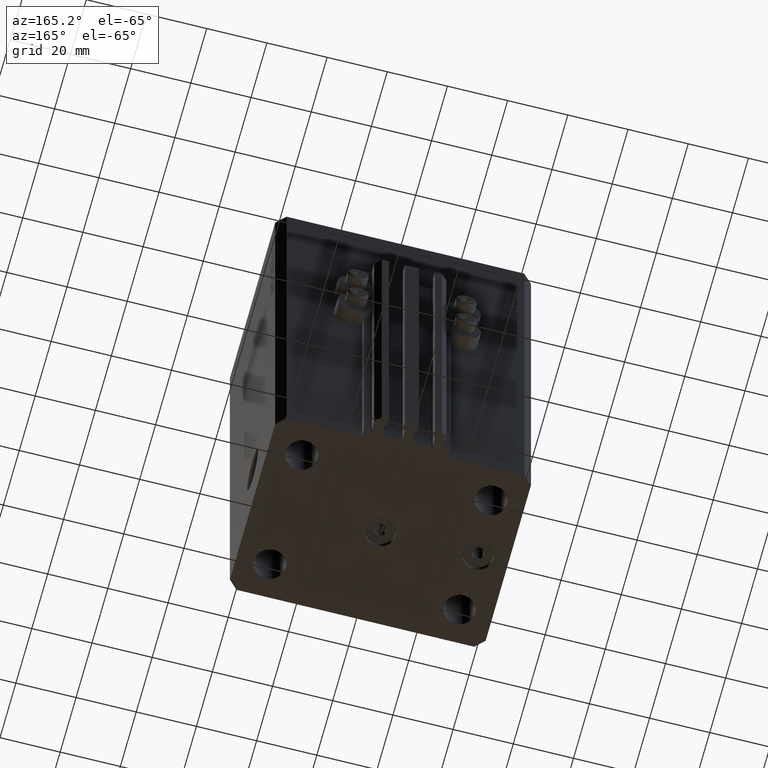
[diagram: clean part render]
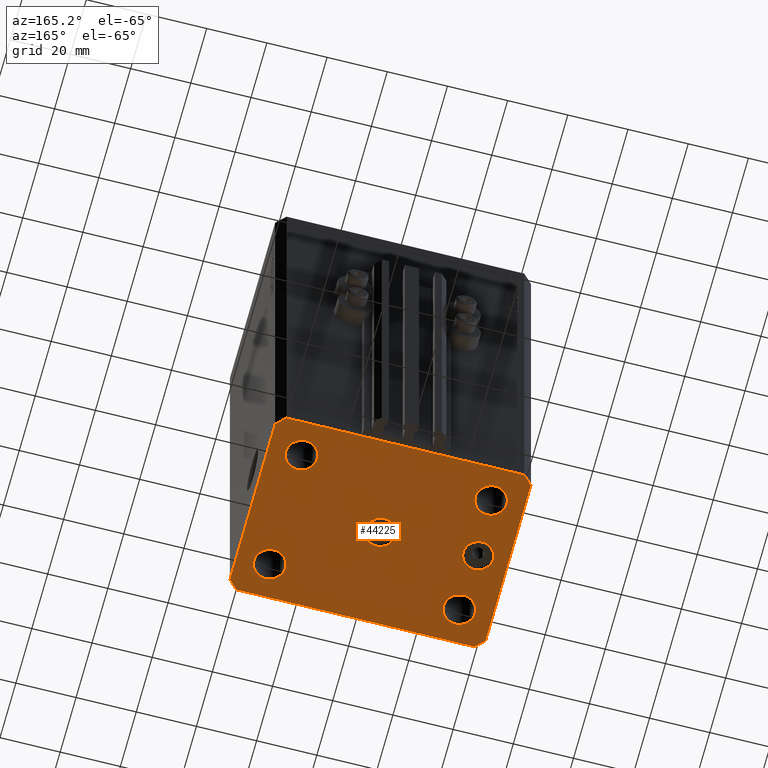
[diagram: same view with one face highlighted and labeled with its STEP entity id]
A machine part, auxiliary view. The second image highlights one B-rep face of the part: STEP entity #44225.
In plain terms, the highlighted planar face has unit normal (0, 0, 1).
Its self-contained STEP definition (entity closure, byte-faithful):
#68 = DIRECTION ( 'NONE',  ( -0.000000000000000000, -0.000000000000000000, -1.000000000000000000 ) ) ;
#307 = VERTEX_POINT ( 'NONE', #28433 ) ;
#404 = CARTESIAN_POINT ( 'NONE',  ( 0.000000000000000000, 0.000000000000000000, -153.0000000000000000 ) ) ;
#549 = VERTEX_POINT ( 'NONE', #17011 ) ;
#1037 = EDGE_CURVE ( 'NONE', #16553, #2522, #30980, .T. ) ;
#1038 = EDGE_CURVE ( 'NONE', #17531, #16792, #30493, .T. ) ;
#1124 = ORIENTED_EDGE ( 'NONE', *, *, #1037, .F. ) ;
#2073 = VERTEX_POINT ( 'NONE', #20455 ) ;
#2261 = DIRECTION ( 'NONE',  ( 0.000000000000000000, 0.000000000000000000, -1.000000000000000000 ) ) ;
#2512 = EDGE_CURVE ( 'NONE', #307, #549, #16695, .T. ) ;
#2522 = VERTEX_POINT ( 'NONE', #24583 ) ;
#2758 = VERTEX_POINT ( 'NONE', #4801 ) ;
#3050 = ORIENTED_EDGE ( 'NONE', *, *, #42569, .F. ) ;
#3149 = VECTOR ( 'NONE', #10317, 1000.000000000000000 ) ;
#3196 = AXIS2_PLACEMENT_3D ( 'NONE', #29631, #43973, #36779 ) ;
#3220 = ORIENTED_EDGE ( 'NONE', *, *, #2512, .F. ) ;
#3292 = ORIENTED_EDGE ( 'NONE', *, *, #41000, .F. ) ;
#3372 = EDGE_CURVE ( 'NONE', #43378, #18366, #3892, .T. ) ;
#3548 = ORIENTED_EDGE ( 'NONE', *, *, #40718, .F. ) ;
#3695 = AXIS2_PLACEMENT_3D ( 'NONE', #30355, #3900, #30610 ) ;
#3892 = LINE ( 'NONE', #11298, #4946 ) ;
#3900 = DIRECTION ( 'NONE',  ( -0.000000000000000000, -0.000000000000000000, -1.000000000000000000 ) ) ;
#4521 = DIRECTION ( 'NONE',  ( 1.000000000000000000, 0.000000000000000000, 0.000000000000000000 ) ) ;
#4600 = PLANE ( 'NONE',  #10551 ) ;
#4801 = CARTESIAN_POINT ( 'NONE',  ( -26.25000000000000000, 19.99999999999999645, -153.0000000000000000 ) ) ;
#4930 = CARTESIAN_POINT ( 'NONE',  ( 42.50000000000000711, -28.50000000000000355, -153.0000000000000000 ) ) ;
#4946 = VECTOR ( 'NONE', #18954, 1000.000000000000000 ) ;
#5120 = CARTESIAN_POINT ( 'NONE',  ( 39.50000000000000711, -31.50000000000000000, -153.0000000000000000 ) ) ;
#5556 = CARTESIAN_POINT ( 'NONE',  ( 0.000000000000000000, 0.000000000000000000, -153.0000000000000000 ) ) ;
#5746 = EDGE_CURVE ( 'NONE', #16792, #16553, #9129, .T. ) ;
#5913 = AXIS2_PLACEMENT_3D ( 'NONE', #10650, #18554, #14853 ) ;
#6056 = CARTESIAN_POINT ( 'NONE',  ( 39.50000000000056843, 31.50000000000000000, -153.0000000000000000 ) ) ;
#6152 = CIRCLE ( 'NONE', #45645, 5.249999999999997335 ) ;
#6597 = EDGE_CURVE ( 'NONE', #2522, #307, #20618, .T. ) ;
#7048 = ORIENTED_EDGE ( 'NONE', *, *, #28364, .F. ) ;
#7679 = CARTESIAN_POINT ( 'NONE',  ( -27.50000000000000355, 6.123233995736762338E-16, -153.0000000000000000 ) ) ;
#7988 = ORIENTED_EDGE ( 'NONE', *, *, #48752, .F. ) ;
#8320 = FACE_BOUND ( 'NONE', #28887, .T. ) ;
#8664 = CIRCLE ( 'NONE', #36273, 5.249999999999997335 ) ;
#8885 = CIRCLE ( 'NONE', #23865, 4.999999999999997335 ) ;
#9129 = LINE ( 'NONE', #16543, #46115 ) ;
#9135 = EDGE_LOOP ( 'NONE', ( #27812, #37225 ) ) ;
#9260 = FACE_BOUND ( 'NONE', #17111, .T. ) ;
#9530 = DIRECTION ( 'NONE',  ( 1.000000000000000000, 0.000000000000000000, 0.000000000000000000 ) ) ;
#9642 = EDGE_CURVE ( 'NONE', #549, #43378, #36072, .T. ) ;
#9663 = CIRCLE ( 'NONE', #37304, 5.249999999999997335 ) ;
#9947 = CARTESIAN_POINT ( 'NONE',  ( -42.50000000000000000, -28.50000000000000000, -153.0000000000000000 ) ) ;
#10255 = DIRECTION ( 'NONE',  ( -0.000000000000000000, -0.000000000000000000, -1.000000000000000000 ) ) ;
#10317 = DIRECTION ( 'NONE',  ( 0.7071067811865471286, -0.7071067811865479058, 0.000000000000000000 ) ) ;
#10353 = CARTESIAN_POINT ( 'NONE',  ( -5.000000000000000000, 0.000000000000000000, -153.0000000000000000 ) ) ;
#10551 = AXIS2_PLACEMENT_3D ( 'NONE', #5556, #19660, #46151 ) ;
#10650 = CARTESIAN_POINT ( 'NONE',  ( -31.49999999999999289, -20.00000000000000355, -153.0000000000000000 ) ) ;
#10687 = CARTESIAN_POINT ( 'NONE',  ( 36.75000000000000000, 19.99999999999999289, -153.0000000000000000 ) ) ;
#10788 = DIRECTION ( 'NONE',  ( -0.000000000000000000, -0.000000000000000000, -1.000000000000000000 ) ) ;
#10831 = CARTESIAN_POINT ( 'NONE',  ( 26.25000000000000355, 19.99999999999999289, -153.0000000000000000 ) ) ;
#11246 = CARTESIAN_POINT ( 'NONE',  ( -26.24999999999999289, -20.00000000000000355, -153.0000000000000000 ) ) ;
#11298 = CARTESIAN_POINT ( 'NONE',  ( -42.50000000000000000, 28.50000000000000000, -153.0000000000000000 ) ) ;
#11497 = AXIS2_PLACEMENT_3D ( 'NONE', #23311, #15651, #26527 ) ;
#12744 = ORIENTED_EDGE ( 'NONE', *, *, #6597, .F. ) ;
#12787 = AXIS2_PLACEMENT_3D ( 'NONE', #404, #27988, #15220 ) ;
#13973 = DIRECTION ( 'NONE',  ( 1.000000000000000000, 0.000000000000000000, 0.000000000000000000 ) ) ;
#14098 = AXIS2_PLACEMENT_3D ( 'NONE', #34296, #19686, #38500 ) ;
#14107 = EDGE_LOOP ( 'NONE', ( #44813, #3292 ) ) ;
#14476 = VECTOR ( 'NONE', #31784, 1000.000000000000000 ) ;
#14503 = AXIS2_PLACEMENT_3D ( 'NONE', #48550, #68, #15141 ) ;
#14853 = DIRECTION ( 'NONE',  ( 1.000000000000000000, 0.000000000000000000, 0.000000000000000000 ) ) ;
#15141 = DIRECTION ( 'NONE',  ( 1.000000000000000000, 0.000000000000000000, 0.000000000000000000 ) ) ;
#15220 = DIRECTION ( 'NONE',  ( -1.000000000000000000, 0.000000000000000000, 0.000000000000000000 ) ) ;
#15397 = CARTESIAN_POINT ( 'NONE',  ( -39.50000000000000711, -31.50000000000000000, -153.0000000000000000 ) ) ;
#15609 = EDGE_LOOP ( 'NONE', ( #3050, #22230 ) ) ;
#15651 = DIRECTION ( 'NONE',  ( -0.000000000000000000, -0.000000000000000000, -1.000000000000000000 ) ) ;
#15958 = DIRECTION ( 'NONE',  ( -0.7071067811865356934, 0.7071067811865594521, 0.000000000000000000 ) ) ;
#15962 = ORIENTED_EDGE ( 'NONE', *, *, #3372, .F. ) ;
#16502 = CARTESIAN_POINT ( 'NONE',  ( 5.000000000000000000, 6.123233995736765296E-16, -153.0000000000000000 ) ) ;
#16543 = CARTESIAN_POINT ( 'NONE',  ( 39.50000000000000711, -31.50000000000000000, -153.0000000000000000 ) ) ;
#16553 = VERTEX_POINT ( 'NONE', #4930 ) ;
#16674 = EDGE_CURVE ( 'NONE', #2758, #30425, #32193, .T. ) ;
#16695 = LINE ( 'NONE', #6056, #14476 ) ;
#16792 = VERTEX_POINT ( 'NONE', #5120 ) ;
#17011 = CARTESIAN_POINT ( 'NONE',  ( -39.50000000000000711, 31.50000000000000000, -153.0000000000000000 ) ) ;
#17111 = EDGE_LOOP ( 'NONE', ( #27799, #18821 ) ) ;
#17531 = VERTEX_POINT ( 'NONE', #48740 ) ;
#18366 = VERTEX_POINT ( 'NONE', #9947 ) ;
#18554 = DIRECTION ( 'NONE',  ( -0.000000000000000000, -0.000000000000000000, -1.000000000000000000 ) ) ;
#18821 = ORIENTED_EDGE ( 'NONE', *, *, #31296, .F. ) ;
#18954 = DIRECTION ( 'NONE',  ( 0.000000000000000000, -1.000000000000000000, 0.000000000000000000 ) ) ;
#19656 = CARTESIAN_POINT ( 'NONE',  ( 42.50000000000051870, 28.49999999999995381, -153.0000000000000000 ) ) ;
#19660 = DIRECTION ( 'NONE',  ( 0.000000000000000000, 0.000000000000000000, 1.000000000000000000 ) ) ;
#19686 = DIRECTION ( 'NONE',  ( 0.000000000000000000, 0.000000000000000000, -1.000000000000000000 ) ) ;
#19824 = EDGE_CURVE ( 'NONE', #43761, #23746, #6152, .T. ) ;
#20002 = EDGE_LOOP ( 'NONE', ( #7988, #21241 ) ) ;
#20455 = CARTESIAN_POINT ( 'NONE',  ( -37.50000000000000000, 0.000000000000000000, -153.0000000000000000 ) ) ;
#20554 = CARTESIAN_POINT ( 'NONE',  ( -32.50000000000000000, 0.000000000000000000, -153.0000000000000000 ) ) ;
#20618 = LINE ( 'NONE', #19656, #23969 ) ;
#20631 = ORIENTED_EDGE ( 'NONE', *, *, #5746, .F. ) ;
#21241 = ORIENTED_EDGE ( 'NONE', *, *, #28756, .F. ) ;
#21949 = VERTEX_POINT ( 'NONE', #10353 ) ;
#22029 = EDGE_CURVE ( 'NONE', #2073, #47007, #40169, .T. ) ;
#22230 = ORIENTED_EDGE ( 'NONE', *, *, #19824, .F. ) ;
#22539 = EDGE_LOOP ( 'NONE', ( #3220, #12744, #1124, #20631, #47264, #7048, #15962, #45054 ) ) ;
#23076 = VECTOR ( 'NONE', #4521, 1000.000000000000000 ) ;
#23311 = CARTESIAN_POINT ( 'NONE',  ( -31.49999999999999289, -20.00000000000000355, -153.0000000000000000 ) ) ;
#23376 = FACE_BOUND ( 'NONE', #15609, .T. ) ;
#23746 = VERTEX_POINT ( 'NONE', #35014 ) ;
#23865 = AXIS2_PLACEMENT_3D ( 'NONE', #20554, #2261, #31945 ) ;
#23969 = VECTOR ( 'NONE', #15958, 1000.000000000000114 ) ;
#24329 = FACE_BOUND ( 'NONE', #9135, .T. ) ;
#24452 = CIRCLE ( 'NONE', #26843, 5.250000000000000888 ) ;
#24583 = CARTESIAN_POINT ( 'NONE',  ( 42.50000000000051870, 28.49999999999995381, -153.0000000000000000 ) ) ;
#25530 = VERTEX_POINT ( 'NONE', #10687 ) ;
#25624 = VECTOR ( 'NONE', #25668, 1000.000000000000000 ) ;
#25668 = DIRECTION ( 'NONE',  ( -0.7071067811865471286, -0.7071067811865479058, 0.000000000000000000 ) ) ;
#25867 = DIRECTION ( 'NONE',  ( 1.000000000000000000, 0.000000000000000000, 0.000000000000000000 ) ) ;
#26527 = DIRECTION ( 'NONE',  ( 1.000000000000000000, 0.000000000000000000, 0.000000000000000000 ) ) ;
#26843 = AXIS2_PLACEMENT_3D ( 'NONE', #39710, #44143, #9530 ) ;
#27799 = ORIENTED_EDGE ( 'NONE', *, *, #32065, .F. ) ;
#27812 = ORIENTED_EDGE ( 'NONE', *, *, #16674, .F. ) ;
#27988 = DIRECTION ( 'NONE',  ( 0.000000000000000000, 0.000000000000000000, -1.000000000000000000 ) ) ;
#28364 = EDGE_CURVE ( 'NONE', #18366, #17531, #48932, .T. ) ;
#28433 = CARTESIAN_POINT ( 'NONE',  ( 39.50000000000056843, 31.50000000000000000, -153.0000000000000000 ) ) ;
#28756 = EDGE_CURVE ( 'NONE', #43204, #25530, #8664, .T. ) ;
#28852 = CIRCLE ( 'NONE', #11497, 5.250000000000000888 ) ;
#28887 = EDGE_LOOP ( 'NONE', ( #3548, #47356 ) ) ;
#29063 = CARTESIAN_POINT ( 'NONE',  ( 31.50000000000000000, 19.99999999999999289, -153.0000000000000000 ) ) ;
#29310 = CARTESIAN_POINT ( 'NONE',  ( 31.49999999999999289, -20.00000000000000355, -153.0000000000000000 ) ) ;
#29631 = CARTESIAN_POINT ( 'NONE',  ( 0.000000000000000000, 0.000000000000000000, -153.0000000000000000 ) ) ;
#30237 = DIRECTION ( 'NONE',  ( 8.886653596232072440E-15, 1.000000000000000000, 0.000000000000000000 ) ) ;
#30355 = CARTESIAN_POINT ( 'NONE',  ( -31.50000000000000000, 19.99999999999999645, -153.0000000000000000 ) ) ;
#30425 = VERTEX_POINT ( 'NONE', #42839 ) ;
#30493 = LINE ( 'NONE', #15397, #23076 ) ;
#30610 = DIRECTION ( 'NONE',  ( 1.000000000000000000, 0.000000000000000000, 0.000000000000000000 ) ) ;
#30980 = LINE ( 'NONE', #38628, #44392 ) ;
#31296 = EDGE_CURVE ( 'NONE', #43560, #37344, #48577, .T. ) ;
#31306 = FACE_BOUND ( 'NONE', #14107, .T. ) ;
#31784 = DIRECTION ( 'NONE',  ( -1.000000000000000000, 0.000000000000000000, 0.000000000000000000 ) ) ;
#31945 = DIRECTION ( 'NONE',  ( -1.000000000000000000, 0.000000000000000000, 0.000000000000000000 ) ) ;
#32065 = EDGE_CURVE ( 'NONE', #37344, #43560, #28852, .T. ) ;
#32193 = CIRCLE ( 'NONE', #3695, 5.250000000000000888 ) ;
#32662 = CARTESIAN_POINT ( 'NONE',  ( -36.74999999999999289, -20.00000000000000355, -153.0000000000000000 ) ) ;
#33579 = VERTEX_POINT ( 'NONE', #16502 ) ;
#33758 = DIRECTION ( 'NONE',  ( -0.000000000000000000, -0.000000000000000000, -1.000000000000000000 ) ) ;
#34127 = CIRCLE ( 'NONE', #12787, 5.000000000000000000 ) ;
#34296 = CARTESIAN_POINT ( 'NONE',  ( -32.50000000000000000, 0.000000000000000000, -153.0000000000000000 ) ) ;
#34628 = DIRECTION ( 'NONE',  ( 0.7071067811865483499, 0.7071067811865466846, 0.000000000000000000 ) ) ;
#35014 = CARTESIAN_POINT ( 'NONE',  ( 36.74999999999999289, -20.00000000000000355, -153.0000000000000000 ) ) ;
#35460 = EDGE_CURVE ( 'NONE', #30425, #2758, #24452, .T. ) ;
#36072 = LINE ( 'NONE', #40278, #25624 ) ;
#36273 = AXIS2_PLACEMENT_3D ( 'NONE', #29063, #33758, #48113 ) ;
#36727 = EDGE_CURVE ( 'NONE', #33579, #21949, #45078, .T. ) ;
#36779 = DIRECTION ( 'NONE',  ( -1.000000000000000000, 0.000000000000000000, 0.000000000000000000 ) ) ;
#36967 = CARTESIAN_POINT ( 'NONE',  ( -42.50000000000000000, 28.50000000000000000, -153.0000000000000000 ) ) ;
#37225 = ORIENTED_EDGE ( 'NONE', *, *, #35460, .F. ) ;
#37304 = AXIS2_PLACEMENT_3D ( 'NONE', #44428, #10788, #25867 ) ;
#37344 = VERTEX_POINT ( 'NONE', #11246 ) ;
#37405 = CIRCLE ( 'NONE', #14503, 5.249999999999997335 ) ;
#38473 = FACE_OUTER_BOUND ( 'NONE', #22539, .T. ) ;
#38500 = DIRECTION ( 'NONE',  ( -1.000000000000000000, 0.000000000000000000, 0.000000000000000000 ) ) ;
#38628 = CARTESIAN_POINT ( 'NONE',  ( 42.50000000000000711, -28.50000000000000355, -153.0000000000000000 ) ) ;
#39710 = CARTESIAN_POINT ( 'NONE',  ( -31.50000000000000000, 19.99999999999999645, -153.0000000000000000 ) ) ;
#40169 = CIRCLE ( 'NONE', #14098, 4.999999999999997335 ) ;
#40278 = CARTESIAN_POINT ( 'NONE',  ( -39.50000000000000711, 31.50000000000000000, -153.0000000000000000 ) ) ;
#40718 = EDGE_CURVE ( 'NONE', #21949, #33579, #34127, .T. ) ;
#41000 = EDGE_CURVE ( 'NONE', #47007, #2073, #8885, .T. ) ;
#42569 = EDGE_CURVE ( 'NONE', #23746, #43761, #9663, .T. ) ;
#42839 = CARTESIAN_POINT ( 'NONE',  ( -36.75000000000000000, 19.99999999999999645, -153.0000000000000000 ) ) ;
#43145 = FACE_BOUND ( 'NONE', #20002, .T. ) ;
#43204 = VERTEX_POINT ( 'NONE', #10831 ) ;
#43378 = VERTEX_POINT ( 'NONE', #36967 ) ;
#43560 = VERTEX_POINT ( 'NONE', #32662 ) ;
#43761 = VERTEX_POINT ( 'NONE', #48445 ) ;
#43973 = DIRECTION ( 'NONE',  ( 0.000000000000000000, 0.000000000000000000, -1.000000000000000000 ) ) ;
#44143 = DIRECTION ( 'NONE',  ( -0.000000000000000000, -0.000000000000000000, -1.000000000000000000 ) ) ;
#44225 = ADVANCED_FACE ( 'NONE', ( #8320, #31306, #9260, #23376, #43145, #24329, #38473 ), #4600, .F. ) ;
#44392 = VECTOR ( 'NONE', #30237, 1000.000000000000000 ) ;
#44428 = CARTESIAN_POINT ( 'NONE',  ( 31.49999999999999289, -20.00000000000000355, -153.0000000000000000 ) ) ;
#44813 = ORIENTED_EDGE ( 'NONE', *, *, #22029, .F. ) ;
#45054 = ORIENTED_EDGE ( 'NONE', *, *, #9642, .F. ) ;
#45078 = CIRCLE ( 'NONE', #3196, 5.000000000000000000 ) ;
#45211 = CARTESIAN_POINT ( 'NONE',  ( -42.50000000000000000, -28.50000000000000000, -153.0000000000000000 ) ) ;
#45645 = AXIS2_PLACEMENT_3D ( 'NONE', #29310, #10255, #13973 ) ;
#46115 = VECTOR ( 'NONE', #34628, 1000.000000000000000 ) ;
#46151 = DIRECTION ( 'NONE',  ( 1.000000000000000000, 0.000000000000000000, -0.000000000000000000 ) ) ;
#47007 = VERTEX_POINT ( 'NONE', #7679 ) ;
#47264 = ORIENTED_EDGE ( 'NONE', *, *, #1038, .F. ) ;
#47356 = ORIENTED_EDGE ( 'NONE', *, *, #36727, .F. ) ;
#48113 = DIRECTION ( 'NONE',  ( 1.000000000000000000, 0.000000000000000000, 0.000000000000000000 ) ) ;
#48445 = CARTESIAN_POINT ( 'NONE',  ( 26.24999999999999645, -20.00000000000000355, -153.0000000000000000 ) ) ;
#48550 = CARTESIAN_POINT ( 'NONE',  ( 31.50000000000000000, 19.99999999999999289, -153.0000000000000000 ) ) ;
#48577 = CIRCLE ( 'NONE', #5913, 5.250000000000000888 ) ;
#48740 = CARTESIAN_POINT ( 'NONE',  ( -39.50000000000000711, -31.50000000000000000, -153.0000000000000000 ) ) ;
#48752 = EDGE_CURVE ( 'NONE', #25530, #43204, #37405, .T. ) ;
#48932 = LINE ( 'NONE', #45211, #3149 ) ;